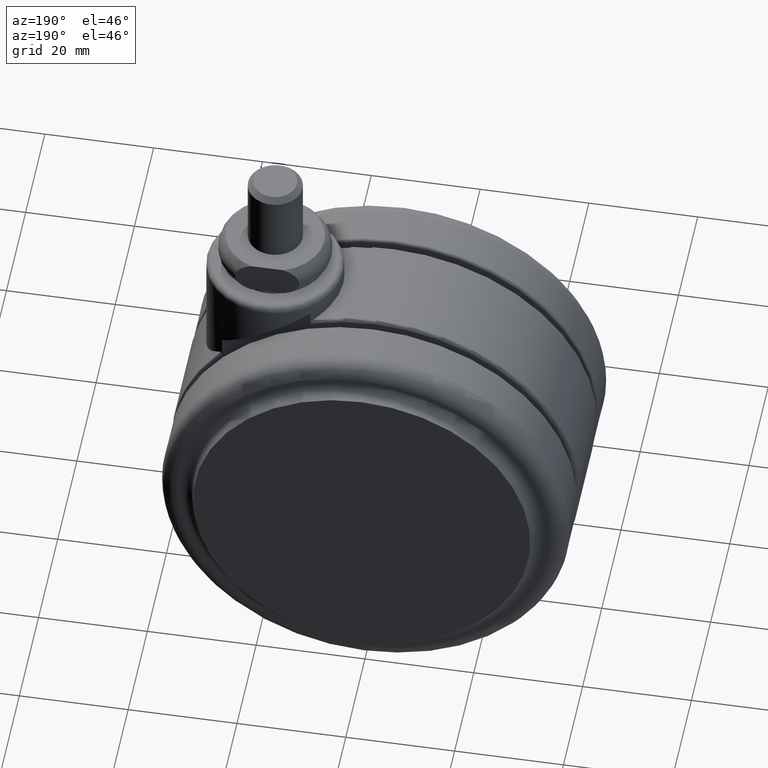
[diagram: clean part render]
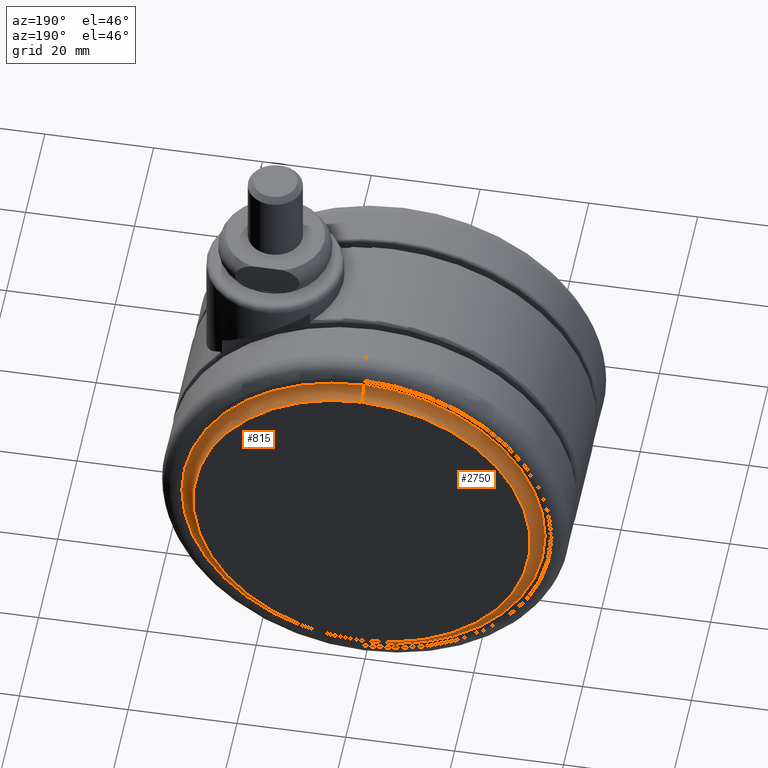
[diagram: same view with one multi-face feature highlighted, each face labeled with its STEP entity id]
A machine part, auxiliary view. The highlighted faces form ONE feature: a constant-radius fillet chain: 2 tangent blend faces with common blend radius 2.2 mm. The faces share edges in the B-rep.
Their STEP definitions:
[1] entity #815 (Torus):
#14 = EDGE_CURVE ( 'NONE', #1044, #90, #3486, .T. ) ;
#90 = VERTEX_POINT ( 'NONE', #2174 ) ;
#109 = CARTESIAN_POINT ( 'NONE',  ( -20.00000000000000400, 23.69163752878125400, -7.308362471218500500 ) ) ;
#414 = DIRECTION ( 'NONE',  ( -1.577021341797096800E-015, -1.000000000000000000, 0.0000000000000000000 ) ) ;
#546 = ORIENTED_EDGE ( 'NONE', *, *, #3072, .T. ) ;
#801 = DIRECTION ( 'NONE',  ( -1.582413479254075000E-015, -1.000000000000000000, 0.0000000000000000000 ) ) ;
#815 = ADVANCED_FACE ( 'NONE', ( #2118 ), #3627, .F. ) ;
#1044 = VERTEX_POINT ( 'NONE', #3717 ) ;
#1117 = CARTESIAN_POINT ( 'NONE',  ( -20.00000000000000000, 23.50000000000000000, -40.50000000000000000 ) ) ;
#1277 = CARTESIAN_POINT ( 'NONE',  ( -20.00000000000000400, 21.50000000000000000, -73.88327505756353700 ) ) ;
#1344 = DIRECTION ( 'NONE',  ( 1.577021341797096800E-015, 1.000000000000000000, 0.0000000000000000000 ) ) ;
#1353 = DIRECTION ( 'NONE',  ( 1.582413479254075000E-015, 1.000000000000000000, 0.0000000000000000000 ) ) ;
#1362 = ORIENTED_EDGE ( 'NONE', *, *, #14, .T. ) ;
#1371 = EDGE_CURVE ( 'NONE', #1044, #3908, #2158, .T. ) ;
#1392 = AXIS2_PLACEMENT_3D ( 'NONE', #109, #2253, #414 ) ;
#1405 = DIRECTION ( 'NONE',  ( 1.000000000000000000, -1.582413479254075000E-015, 0.0000000000000000000 ) ) ;
#1560 = CARTESIAN_POINT ( 'NONE',  ( -20.00000000000000000, 23.69163752878125400, -73.69163752878149900 ) ) ;
#1838 = CARTESIAN_POINT ( 'NONE',  ( -20.00000000000000700, 21.50000000000000000, -7.116724942436476900 ) ) ;
#1961 = VERTEX_POINT ( 'NONE', #1838 ) ;
#2024 = AXIS2_PLACEMENT_3D ( 'NONE', #2633, #801, #2927 ) ;
#2118 = FACE_OUTER_BOUND ( 'NONE', #2455, .T. ) ;
#2158 = CIRCLE ( 'NONE', #2204, 2.200000000000000600 ) ;
#2174 = CARTESIAN_POINT ( 'NONE',  ( -20.00000000000000400, 23.50000000000000000, -9.500000000000001800 ) ) ;
#2175 = ORIENTED_EDGE ( 'NONE', *, *, #2415, .F. ) ;
#2204 = AXIS2_PLACEMENT_3D ( 'NONE', #1560, #1405, #1344 ) ;
#2253 = DIRECTION ( 'NONE',  ( -1.000000000000000000, 1.582413479254075000E-015, -1.224646799147353200E-016 ) ) ;
#2266 = ORIENTED_EDGE ( 'NONE', *, *, #1371, .F. ) ;
#2386 = CIRCLE ( 'NONE', #1392, 2.200000000000000600 ) ;
#2415 = EDGE_CURVE ( 'NONE', #3908, #1961, #3037, .T. ) ;
#2455 = EDGE_LOOP ( 'NONE', ( #1362, #546, #2175, #2266 ) ) ;
#2622 = AXIS2_PLACEMENT_3D ( 'NONE', #1117, #3894, #3870 ) ;
#2633 = CARTESIAN_POINT ( 'NONE',  ( -20.00000000000000000, 21.50000000000000000, -40.50000000000000000 ) ) ;
#2885 = CARTESIAN_POINT ( 'NONE',  ( -20.00000000000000000, 23.69163752878125400, -40.50000000000000000 ) ) ;
#2927 = DIRECTION ( 'NONE',  ( 0.0000000000000000000, 0.0000000000000000000, -1.000000000000000000 ) ) ;
#3026 = AXIS2_PLACEMENT_3D ( 'NONE', #2885, #1353, #3850 ) ;
#3037 = CIRCLE ( 'NONE', #2024, 33.38327505756375800 ) ;
#3072 = EDGE_CURVE ( 'NONE', #90, #1961, #2386, .T. ) ;
#3486 = CIRCLE ( 'NONE', #2622, 31.00000000000000700 ) ;
#3627 = TOROIDAL_SURFACE ( 'NONE', #3026, 33.19163752878149900, 2.200000000000000200 ) ;
#3717 = CARTESIAN_POINT ( 'NONE',  ( -20.00000000000000000, 23.50000000000000000, -71.50000000000001400 ) ) ;
#3850 = DIRECTION ( 'NONE',  ( 0.0000000000000000000, 0.0000000000000000000, -1.000000000000000000 ) ) ;
#3870 = DIRECTION ( 'NONE',  ( 0.0000000000000000000, 0.0000000000000000000, -1.000000000000000000 ) ) ;
#3894 = DIRECTION ( 'NONE',  ( -1.582413479254075000E-015, -1.000000000000000000, 0.0000000000000000000 ) ) ;
#3908 = VERTEX_POINT ( 'NONE', #1277 ) ;
[2] entity #2750 (Torus):
#19 = AXIS2_PLACEMENT_3D ( 'NONE', #3876, #176, #375 ) ;
#90 = VERTEX_POINT ( 'NONE', #2174 ) ;
#109 = CARTESIAN_POINT ( 'NONE',  ( -20.00000000000000400, 23.69163752878125400, -7.308362471218500500 ) ) ;
#145 = CIRCLE ( 'NONE', #19, 31.00000000000000700 ) ;
#172 = DIRECTION ( 'NONE',  ( 0.0000000000000000000, 0.0000000000000000000, -1.000000000000000000 ) ) ;
#176 = DIRECTION ( 'NONE',  ( -1.582413479254075000E-015, -1.000000000000000000, 0.0000000000000000000 ) ) ;
#280 = FACE_OUTER_BOUND ( 'NONE', #2844, .T. ) ;
#375 = DIRECTION ( 'NONE',  ( 0.0000000000000000000, 0.0000000000000000000, -1.000000000000000000 ) ) ;
#414 = DIRECTION ( 'NONE',  ( -1.577021341797096800E-015, -1.000000000000000000, 0.0000000000000000000 ) ) ;
#1044 = VERTEX_POINT ( 'NONE', #3717 ) ;
#1071 = EDGE_CURVE ( 'NONE', #90, #1044, #145, .T. ) ;
#1080 = CARTESIAN_POINT ( 'NONE',  ( -20.00000000000000000, 23.69163752878125400, -40.50000000000000000 ) ) ;
#1277 = CARTESIAN_POINT ( 'NONE',  ( -20.00000000000000400, 21.50000000000000000, -73.88327505756353700 ) ) ;
#1344 = DIRECTION ( 'NONE',  ( 1.577021341797096800E-015, 1.000000000000000000, 0.0000000000000000000 ) ) ;
#1371 = EDGE_CURVE ( 'NONE', #1044, #3908, #2158, .T. ) ;
#1392 = AXIS2_PLACEMENT_3D ( 'NONE', #109, #2253, #414 ) ;
#1405 = DIRECTION ( 'NONE',  ( 1.000000000000000000, -1.582413479254075000E-015, 0.0000000000000000000 ) ) ;
#1560 = CARTESIAN_POINT ( 'NONE',  ( -20.00000000000000000, 23.69163752878125400, -73.69163752878149900 ) ) ;
#1608 = DIRECTION ( 'NONE',  ( -1.582413479254075000E-015, -1.000000000000000000, 0.0000000000000000000 ) ) ;
#1838 = CARTESIAN_POINT ( 'NONE',  ( -20.00000000000000700, 21.50000000000000000, -7.116724942436476900 ) ) ;
#1961 = VERTEX_POINT ( 'NONE', #1838 ) ;
#2126 = ORIENTED_EDGE ( 'NONE', *, *, #1371, .T. ) ;
#2158 = CIRCLE ( 'NONE', #2204, 2.200000000000000600 ) ;
#2174 = CARTESIAN_POINT ( 'NONE',  ( -20.00000000000000400, 23.50000000000000000, -9.500000000000001800 ) ) ;
#2204 = AXIS2_PLACEMENT_3D ( 'NONE', #1560, #1405, #1344 ) ;
#2253 = DIRECTION ( 'NONE',  ( -1.000000000000000000, 1.582413479254075000E-015, -1.224646799147353200E-016 ) ) ;
#2386 = CIRCLE ( 'NONE', #1392, 2.200000000000000600 ) ;
#2483 = CIRCLE ( 'NONE', #2791, 33.38327505756375800 ) ;
#2750 = ADVANCED_FACE ( 'NONE', ( #280 ), #3607, .F. ) ;
#2791 = AXIS2_PLACEMENT_3D ( 'NONE', #3426, #1608, #3728 ) ;
#2844 = EDGE_LOOP ( 'NONE', ( #3881, #3425, #2126, #3739 ) ) ;
#2965 = AXIS2_PLACEMENT_3D ( 'NONE', #1080, #3515, #172 ) ;
#3072 = EDGE_CURVE ( 'NONE', #90, #1961, #2386, .T. ) ;
#3425 = ORIENTED_EDGE ( 'NONE', *, *, #1071, .T. ) ;
#3426 = CARTESIAN_POINT ( 'NONE',  ( -20.00000000000000000, 21.50000000000000000, -40.50000000000000000 ) ) ;
#3515 = DIRECTION ( 'NONE',  ( 1.582413479254075000E-015, 1.000000000000000000, 0.0000000000000000000 ) ) ;
#3607 = TOROIDAL_SURFACE ( 'NONE', #2965, 33.19163752878149900, 2.200000000000000200 ) ;
#3717 = CARTESIAN_POINT ( 'NONE',  ( -20.00000000000000000, 23.50000000000000000, -71.50000000000001400 ) ) ;
#3728 = DIRECTION ( 'NONE',  ( 0.0000000000000000000, 0.0000000000000000000, -1.000000000000000000 ) ) ;
#3739 = ORIENTED_EDGE ( 'NONE', *, *, #3938, .F. ) ;
#3876 = CARTESIAN_POINT ( 'NONE',  ( -20.00000000000000000, 23.50000000000000000, -40.50000000000000000 ) ) ;
#3881 = ORIENTED_EDGE ( 'NONE', *, *, #3072, .F. ) ;
#3908 = VERTEX_POINT ( 'NONE', #1277 ) ;
#3938 = EDGE_CURVE ( 'NONE', #1961, #3908, #2483, .T. ) ;